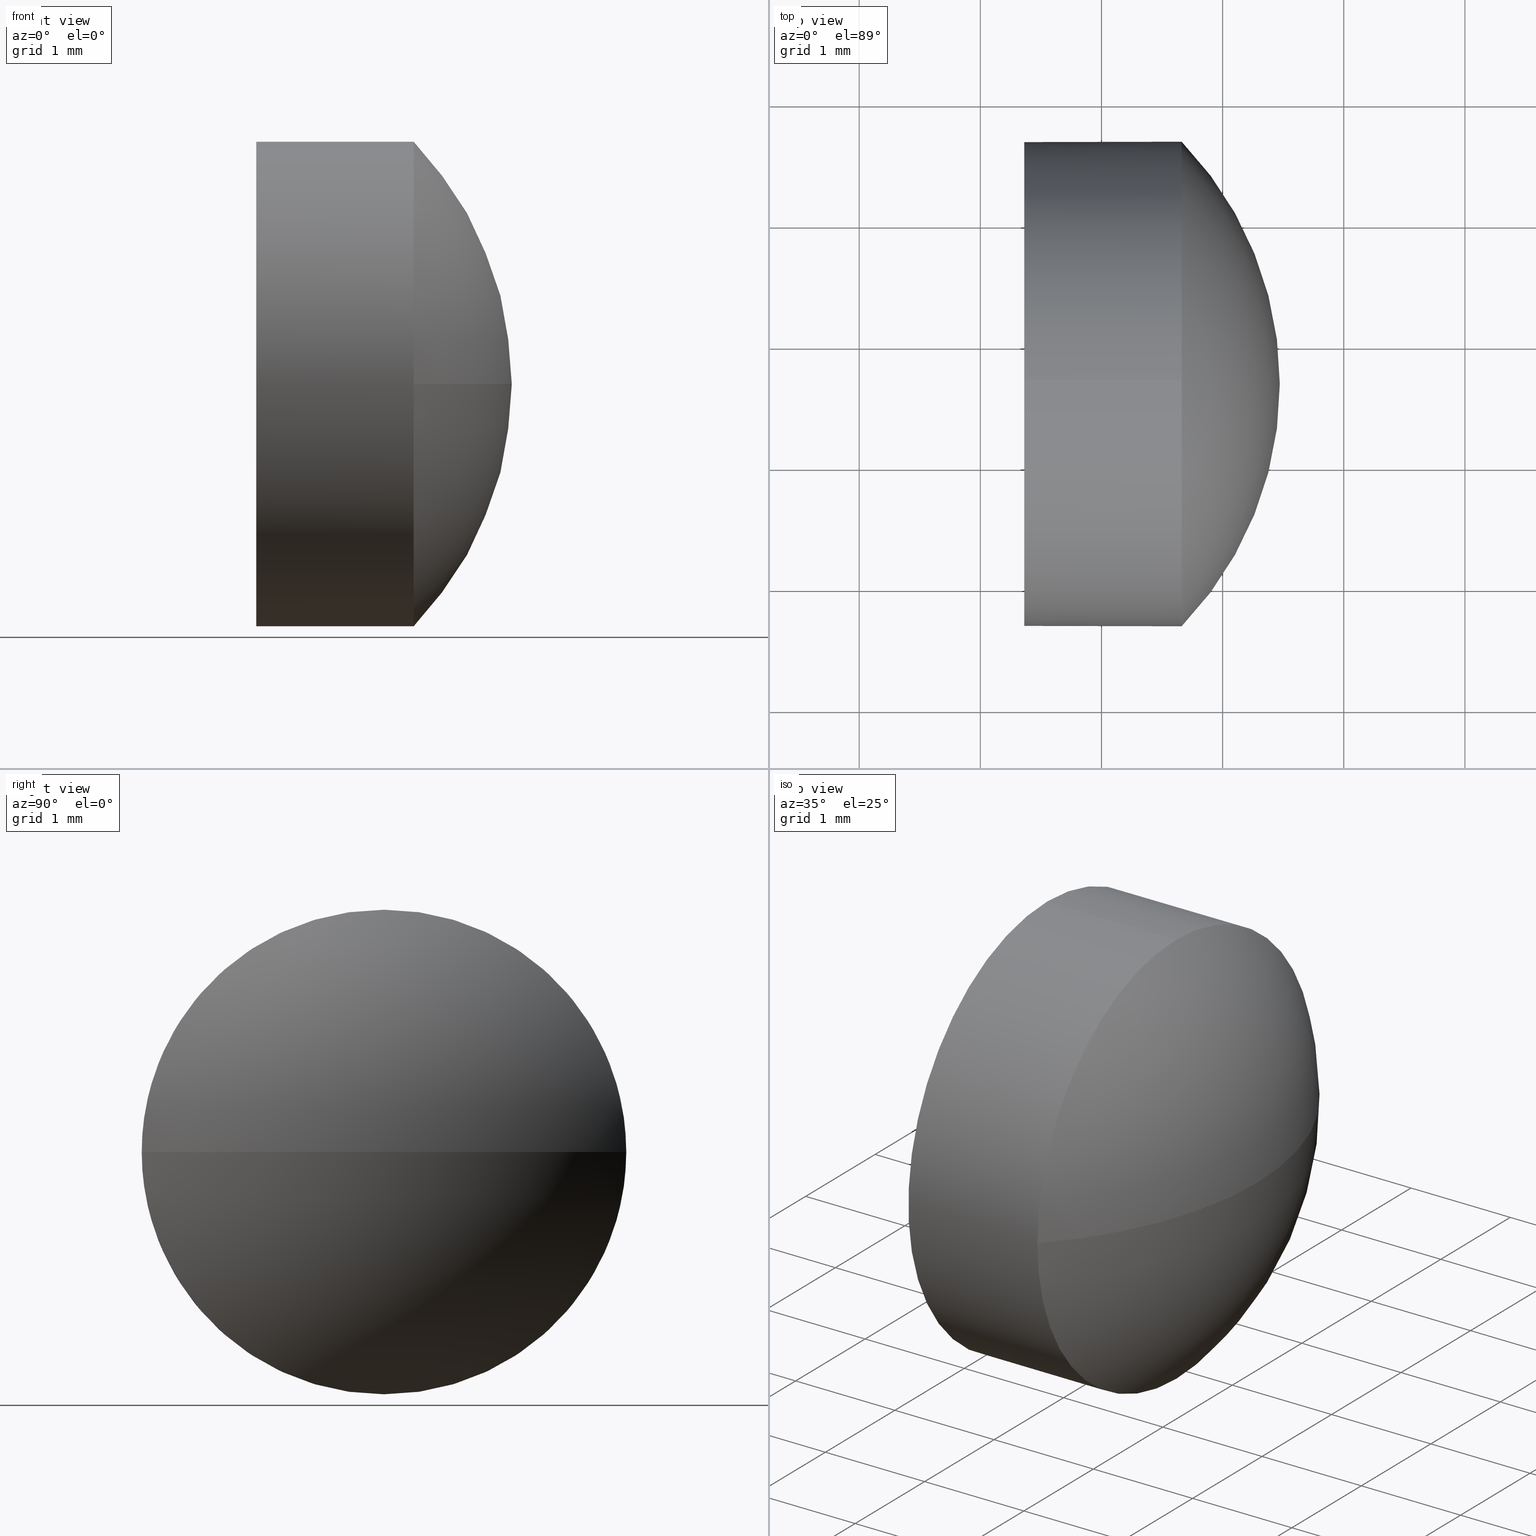
[diagram: canonical four-view strip — front | top / right | iso, engineering-drawing reading convention]
A machine part, canonical four-view strip (front | top / right | iso — engineering-drawing reading convention). The complete STEP part file that produces these views, byte-faithful:
ISO-10303-21;
HEADER;
FILE_DESCRIPTION (( 'STEP AP214' ),
    '1' );
FILE_NAME ('100345.STEP',
    '2019-06-03T02:19:22',
    ( '' ),
    ( '' ),
    'SwSTEP 2.0',
    'SolidWorks 2016',
    '' );
FILE_SCHEMA (( 'AUTOMOTIVE_DESIGN' ));
ENDSEC;

DATA;
#1 = STYLED_ITEM ( 'NONE', ( #39 ), #55 ) ;
#2 = CARTESIAN_POINT ( 'NONE',  ( 370.6620261446945500, 55.67682587969912300, 0.0000000000000000000 ) ) ;
#3 = EDGE_CURVE ( 'NONE', #177, #56, #150, .T. ) ;
#4 = FILL_AREA_STYLE_COLOUR ( '', #140 ) ;
#5 = PRODUCT ( '100345', '100345', '', ( #111 ) ) ;
#6 = ORIENTED_EDGE ( 'NONE', *, *, #129, .T. ) ;
#7 = DIRECTION ( 'NONE',  ( 1.000000000000000000, 0.0000000000000000000, 0.0000000000000000000 ) ) ;
#8 = CIRCLE ( 'NONE', #165, 2.874135802469146600 ) ;
#9 = AXIS2_PLACEMENT_3D ( 'NONE', #120, #88, #47 ) ;
#10 = ORIENTED_EDGE ( 'NONE', *, *, #129, .F. ) ;
#11 = ADVANCED_FACE ( 'NONE', ( #83 ), #139, .T. ) ;
#12 = ADVANCED_FACE ( 'NONE', ( #184 ), #78, .T. ) ;
#13 = EDGE_LOOP ( 'NONE', ( #172, #171 ) ) ;
#14 = AXIS2_PLACEMENT_3D ( 'NONE', #2, #45, #178 ) ;
#15 = DIRECTION ( 'NONE',  ( -1.000000000000000000, -0.0000000000000000000, -0.0000000000000000000 ) ) ;
#16 = CARTESIAN_POINT ( 'NONE',  ( 368.9339194506478600, 55.67682587969912300, 0.0000000000000000000 ) ) ;
#17 = CARTESIAN_POINT ( 'NONE',  ( 370.6620261446945500, 55.67682587969912300, 2.000000000000001800 ) ) ;
#18 = CARTESIAN_POINT ( 'NONE',  ( 370.6620261446945500, 57.67682587969912300, 2.449293598294690600E-016 ) ) ;
#19 =( LENGTH_UNIT ( ) NAMED_UNIT ( * ) SI_UNIT ( .MILLI., .METRE. ) );
#20 = FILL_AREA_STYLE ('',( #162 ) ) ;
#21 = ORIENTED_EDGE ( 'NONE', *, *, #137, .F. ) ;
#22 = UNCERTAINTY_MEASURE_WITH_UNIT (LENGTH_MEASURE( 1.000000000000000100E-005 ), #19, 'distance_accuracy_value', 'NONE');
#23 = PRESENTATION_LAYER_ASSIGNMENT (  '', '', ( #1 ) ) ;
#24 = ORIENTED_EDGE ( 'NONE', *, *, #166, .T. ) ;
#25 = ORIENTED_EDGE ( 'NONE', *, *, #110, .F. ) ;
#26 = LINE ( 'NONE', #105, #155 ) ;
#27 =( LENGTH_UNIT ( ) NAMED_UNIT ( * ) SI_UNIT ( .MILLI., .METRE. ) );
#28 = SPHERICAL_SURFACE ( 'NONE', #157, 2.874135802469149200 ) ;
#29 = CARTESIAN_POINT ( 'NONE',  ( 368.9339194506478600, 55.67682587969912300, -2.000000000000001800 ) ) ;
#30 = CARTESIAN_POINT ( 'NONE',  ( 369.3620261446946000, 55.67682587969912300, 0.0000000000000000000 ) ) ;
#31 = COLOUR_RGB ( '',1.000000000000000000, 1.000000000000000000, 1.000000000000000000 ) ;
#32 = CARTESIAN_POINT ( 'NONE',  ( 368.9339194506478600, 55.67682587969912300, 0.0000000000000000000 ) ) ;
#33 = SURFACE_STYLE_USAGE ( .BOTH. , #168 ) ;
#34 =( GEOMETRIC_REPRESENTATION_CONTEXT ( 3 ) GLOBAL_UNCERTAINTY_ASSIGNED_CONTEXT ( ( #41 ) ) GLOBAL_UNIT_ASSIGNED_CONTEXT ( ( #62, #163, #176 ) ) REPRESENTATION_CONTEXT ( 'NONE', 'WORKASPACE' ) );
#35 = DIRECTION ( 'NONE',  ( 0.0000000000000000000, 0.0000000000000000000, 1.000000000000000000 ) ) ;
#36 = MANIFOLD_SOLID_BREP ( '��ת1', #66 ) ;
#37 = FACE_OUTER_BOUND ( 'NONE', #160, .T. ) ;
#38 =( GEOMETRIC_REPRESENTATION_CONTEXT ( 3 ) GLOBAL_UNCERTAINTY_ASSIGNED_CONTEXT ( ( #180 ) ) GLOBAL_UNIT_ASSIGNED_CONTEXT ( ( #27, #161, #70 ) ) REPRESENTATION_CONTEXT ( 'NONE', 'WORKASPACE' ) );
#39 = PRESENTATION_STYLE_ASSIGNMENT (( #117 ) ) ;
#40 = VERTEX_POINT ( 'NONE', #102 ) ;
#41 = UNCERTAINTY_MEASURE_WITH_UNIT (LENGTH_MEASURE( 1.000000000000000100E-005 ), #62, 'distance_accuracy_value', 'NONE');
#42 = STYLED_ITEM ( 'NONE', ( #107 ), #36 ) ;
#43 = SURFACE_STYLE_FILL_AREA ( #175 ) ;
#44 = VERTEX_POINT ( 'NONE', #18 ) ;
#45 = DIRECTION ( 'NONE',  ( -1.000000000000000000, -0.0000000000000000000, -0.0000000000000000000 ) ) ;
#46 = DIRECTION ( 'NONE',  ( 0.0000000000000000000, 0.0000000000000000000, 1.000000000000000000 ) ) ;
#47 = DIRECTION ( 'NONE',  ( 0.0000000000000000000, 0.0000000000000000000, 1.000000000000000000 ) ) ;
#48 = PRODUCT_DEFINITION_SHAPE ( 'NONE', 'NONE',  #181 ) ;
#49 = APPLICATION_CONTEXT ( 'automotive_design' ) ;
#50 = CARTESIAN_POINT ( 'NONE',  ( 368.5978903422254100, 55.67682587969913800, 0.0000000000000000000 ) ) ;
#51 = ORIENTED_EDGE ( 'NONE', *, *, #65, .F. ) ;
#52 = VERTEX_POINT ( 'NONE', #164 ) ;
#53 =( GEOMETRIC_REPRESENTATION_CONTEXT ( 3 ) GLOBAL_UNCERTAINTY_ASSIGNED_CONTEXT ( ( #22 ) ) GLOBAL_UNIT_ASSIGNED_CONTEXT ( ( #19, #77, #108 ) ) REPRESENTATION_CONTEXT ( 'NONE', 'WORKASPACE' ) );
#54 = ADVANCED_FACE ( 'NONE', ( #37 ), #28, .T. ) ;
#55 = ADVANCED_BREP_SHAPE_REPRESENTATION ( '100345', ( #36, #68 ), #34 ) ;
#56 = VERTEX_POINT ( 'NONE', #63 ) ;
#57 = EDGE_LOOP ( 'NONE', ( #142, #67, #6, #159, #93 ) ) ;
#58 = SURFACE_SIDE_STYLE ('',( #43 ) ) ;
#59 = DIRECTION ( 'NONE',  ( -1.000000000000000000, -0.0000000000000000000, -0.0000000000000000000 ) ) ;
#60 = MECHANICAL_DESIGN_GEOMETRIC_PRESENTATION_REPRESENTATION (  '', ( #1 ), #38 ) ;
#61 = CARTESIAN_POINT ( 'NONE',  ( 369.3620261446946000, 55.67682587969912300, 0.0000000000000000000 ) ) ;
#62 =( LENGTH_UNIT ( ) NAMED_UNIT ( * ) SI_UNIT ( .MILLI., .METRE. ) );
#63 = CARTESIAN_POINT ( 'NONE',  ( 370.6620261446945500, 53.67682587969914500, 0.0000000000000000000 ) ) ;
#64 = AXIS2_PLACEMENT_3D ( 'NONE', #151, #106, #72 ) ;
#65 = EDGE_CURVE ( 'NONE', #40, #127, #69, .T. ) ;
#66 = CLOSED_SHELL ( 'NONE', ( #12, #11, #54, #113, #182 ) ) ;
#67 = ORIENTED_EDGE ( 'NONE', *, *, #137, .T. ) ;
#68 = AXIS2_PLACEMENT_3D ( 'NONE', #103, #94, #7 ) ;
#69 = CIRCLE ( 'NONE', #145, 2.000000000000001800 ) ;
#70 =( NAMED_UNIT ( * ) SI_UNIT ( $, .STERADIAN. ) SOLID_ANGLE_UNIT ( ) );
#71 = APPLICATION_PROTOCOL_DEFINITION ( 'draft international standard', 'automotive_design', 1998, #49 ) ;
#72 = DIRECTION ( 'NONE',  ( 0.0000000000000000000, 0.0000000000000000000, 1.000000000000000000 ) ) ;
#73 = ORIENTED_EDGE ( 'NONE', *, *, #92, .T. ) ;
#74 = DIRECTION ( 'NONE',  ( -1.000000000000000000, -0.0000000000000000000, -0.0000000000000000000 ) ) ;
#75 = DIRECTION ( 'NONE',  ( 0.0000000000000000000, 0.0000000000000000000, 1.000000000000000000 ) ) ;
#76 = CIRCLE ( 'NONE', #14, 2.000000000000001800 ) ;
#77 =( NAMED_UNIT ( * ) PLANE_ANGLE_UNIT ( ) SI_UNIT ( $, .RADIAN. ) );
#78 = CYLINDRICAL_SURFACE ( 'NONE', #169, 2.000000000000001800 ) ;
#79 = ORIENTED_EDGE ( 'NONE', *, *, #3, .T. ) ;
#80 = PRESENTATION_LAYER_ASSIGNMENT (  '', '', ( #42 ) ) ;
#81 = EDGE_LOOP ( 'NONE', ( #116, #156, #125, #10 ) ) ;
#82 = EDGE_CURVE ( 'NONE', #127, #40, #144, .T. ) ;
#83 = FACE_OUTER_BOUND ( 'NONE', #81, .T. ) ;
#84 = ORIENTED_EDGE ( 'NONE', *, *, #114, .T. ) ;
#85 = DIRECTION ( 'NONE',  ( 0.0000000000000000000, 0.0000000000000000000, -1.000000000000000000 ) ) ;
#86 = CARTESIAN_POINT ( 'NONE',  ( 370.6620261446945500, 55.67682587969912300, 0.0000000000000000000 ) ) ;
#87 = DIRECTION ( 'NONE',  ( 0.0000000000000000000, 0.0000000000000000000, 1.000000000000000000 ) ) ;
#88 = DIRECTION ( 'NONE',  ( -1.000000000000000000, -0.0000000000000000000, -0.0000000000000000000 ) ) ;
#89 = DIRECTION ( 'NONE',  ( -1.000000000000000000, -0.0000000000000000000, -0.0000000000000000000 ) ) ;
#90 = AXIS2_PLACEMENT_3D ( 'NONE', #32, #132, #134 ) ;
#91 = CYLINDRICAL_SURFACE ( 'NONE', #90, 2.000000000000001800 ) ;
#92 = EDGE_CURVE ( 'NONE', #44, #52, #119, .T. ) ;
#93 = ORIENTED_EDGE ( 'NONE', *, *, #82, .F. ) ;
#94 = DIRECTION ( 'NONE',  ( 0.0000000000000000000, 0.0000000000000000000, 1.000000000000000000 ) ) ;
#95 = ORIENTED_EDGE ( 'NONE', *, *, #92, .F. ) ;
#96 = FACE_OUTER_BOUND ( 'NONE', #13, .T. ) ;
#97 = EDGE_CURVE ( 'NONE', #135, #40, #26, .T. ) ;
#98 = AXIS2_PLACEMENT_3D ( 'NONE', #61, #148, #123 ) ;
#99 = CARTESIAN_POINT ( 'NONE',  ( 368.5978903422254100, 55.67682587969913800, 0.0000000000000000000 ) ) ;
#100 = DIRECTION ( 'NONE',  ( -1.000000000000000000, 0.0000000000000000000, 0.0000000000000000000 ) ) ;
#101 = DIRECTION ( 'NONE',  ( -1.000000000000000000, -0.0000000000000000000, -0.0000000000000000000 ) ) ;
#102 = CARTESIAN_POINT ( 'NONE',  ( 369.3620261446946000, 55.67682587969912300, 2.000000000000001800 ) ) ;
#103 = CARTESIAN_POINT ( 'NONE',  ( 0.0000000000000000000, 0.0000000000000000000, 0.0000000000000000000 ) ) ;
#104 = DIRECTION ( 'NONE',  ( 0.0000000000000000000, -1.000000000000000000, -1.224646799147354400E-016 ) ) ;
#105 = CARTESIAN_POINT ( 'NONE',  ( 368.9339194506478600, 55.67682587969912300, 2.000000000000001800 ) ) ;
#106 = DIRECTION ( 'NONE',  ( -1.000000000000000000, -0.0000000000000000000, -0.0000000000000000000 ) ) ;
#107 = PRESENTATION_STYLE_ASSIGNMENT (( #33 ) ) ;
#108 =( NAMED_UNIT ( * ) SI_UNIT ( $, .STERADIAN. ) SOLID_ANGLE_UNIT ( ) );
#109 = CIRCLE ( 'NONE', #9, 2.000000000000001800 ) ;
#110 = EDGE_CURVE ( 'NONE', #177, #44, #8, .T. ) ;
#111 = PRODUCT_CONTEXT ( 'NONE', #49, 'mechanical' ) ;
#112 = EDGE_LOOP ( 'NONE', ( #73, #24, #51, #122, #84 ) ) ;
#113 = ADVANCED_FACE ( 'NONE', ( #158 ), #91, .T. ) ;
#114 = EDGE_CURVE ( 'NONE', #135, #44, #185, .T. ) ;
#115 = LINE ( 'NONE', #29, #173 ) ;
#116 = ORIENTED_EDGE ( 'NONE', *, *, #3, .F. ) ;
#117 = SURFACE_STYLE_USAGE ( .BOTH. , #58 ) ;
#118 = CARTESIAN_POINT ( 'NONE',  ( 368.5978903422254100, 55.67682587969913800, 0.0000000000000000000 ) ) ;
#119 = CIRCLE ( 'NONE', #154, 2.000000000000001800 ) ;
#120 = CARTESIAN_POINT ( 'NONE',  ( 370.6620261446945500, 55.67682587969912300, 0.0000000000000000000 ) ) ;
#121 = DIRECTION ( 'NONE',  ( 0.0000000000000000000, -1.224646799147353200E-016, 1.000000000000000000 ) ) ;
#122 = ORIENTED_EDGE ( 'NONE', *, *, #97, .F. ) ;
#123 = DIRECTION ( 'NONE',  ( 0.0000000000000000000, 0.0000000000000000000, -1.000000000000000000 ) ) ;
#124 = CARTESIAN_POINT ( 'NONE',  ( 370.6620261446945500, 55.67682587969912300, 0.0000000000000000000 ) ) ;
#125 = ORIENTED_EDGE ( 'NONE', *, *, #114, .F. ) ;
#126 = AXIS2_PLACEMENT_3D ( 'NONE', #99, #85, #100 ) ;
#127 = VERTEX_POINT ( 'NONE', #146 ) ;
#128 = PRODUCT_DEFINITION_FORMATION_WITH_SPECIFIED_SOURCE ( '�κ�', '', #5, .NOT_KNOWN. ) ;
#129 = EDGE_CURVE ( 'NONE', #56, #135, #76, .T. ) ;
#130 = DIRECTION ( 'NONE',  ( 0.0000000000000000000, -1.000000000000000000, 0.0000000000000000000 ) ) ;
#131 = CARTESIAN_POINT ( 'NONE',  ( 371.4720261446945500, 55.67682587969913800, 0.0000000000000000000 ) ) ;
#132 = DIRECTION ( 'NONE',  ( -1.000000000000000000, -0.0000000000000000000, -0.0000000000000000000 ) ) ;
#133 = CARTESIAN_POINT ( 'NONE',  ( 368.5978903422254100, 55.67682587969913800, 0.0000000000000000000 ) ) ;
#134 = DIRECTION ( 'NONE',  ( 0.0000000000000000000, 0.0000000000000000000, 1.000000000000000000 ) ) ;
#135 = VERTEX_POINT ( 'NONE', #17 ) ;
#136 = PRODUCT_RELATED_PRODUCT_CATEGORY ( 'part', '', ( #5 ) ) ;
#137 = EDGE_CURVE ( 'NONE', #52, #56, #109, .T. ) ;
#138 = APPLICATION_CONTEXT ( 'automotive_design' ) ;
#139 = SPHERICAL_SURFACE ( 'NONE', #141, 2.874135802469149200 ) ;
#140 = COLOUR_RGB ( '',1.000000000000000000, 1.000000000000000000, 1.000000000000000000 ) ;
#141 = AXIS2_PLACEMENT_3D ( 'NONE', #118, #147, #130 ) ;
#142 = ORIENTED_EDGE ( 'NONE', *, *, #166, .F. ) ;
#143 = PRODUCT_DEFINITION_CONTEXT ( 'detailed design', #138, 'design' ) ;
#144 = CIRCLE ( 'NONE', #64, 2.000000000000001800 ) ;
#145 = AXIS2_PLACEMENT_3D ( 'NONE', #30, #89, #174 ) ;
#146 = CARTESIAN_POINT ( 'NONE',  ( 369.3620261446946000, 55.67682587969912300, -2.000000000000001800 ) ) ;
#147 = DIRECTION ( 'NONE',  ( 0.0000000000000000000, 0.0000000000000000000, 1.000000000000000000 ) ) ;
#148 = DIRECTION ( 'NONE',  ( 1.000000000000000000, 0.0000000000000000000, 0.0000000000000000000 ) ) ;
#149 = PLANE ( 'NONE',  #98 ) ;
#150 = CIRCLE ( 'NONE', #126, 2.874135802469146600 ) ;
#151 = CARTESIAN_POINT ( 'NONE',  ( 369.3620261446946000, 55.67682587969912300, 0.0000000000000000000 ) ) ;
#152 = DIRECTION ( 'NONE',  ( 0.0000000000000000000, -1.000000000000000000, 0.0000000000000000000 ) ) ;
#153 = MECHANICAL_DESIGN_GEOMETRIC_PRESENTATION_REPRESENTATION (  '', ( #42 ), #53 ) ;
#154 = AXIS2_PLACEMENT_3D ( 'NONE', #124, #167, #46 ) ;
#155 = VECTOR ( 'NONE', #74, 1000.000000000000000 ) ;
#156 = ORIENTED_EDGE ( 'NONE', *, *, #110, .T. ) ;
#157 = AXIS2_PLACEMENT_3D ( 'NONE', #50, #35, #152 ) ;
#158 = FACE_OUTER_BOUND ( 'NONE', #57, .T. ) ;
#159 = ORIENTED_EDGE ( 'NONE', *, *, #97, .T. ) ;
#160 = EDGE_LOOP ( 'NONE', ( #25, #79, #21, #95 ) ) ;
#161 =( NAMED_UNIT ( * ) PLANE_ANGLE_UNIT ( ) SI_UNIT ( $, .RADIAN. ) );
#162 = FILL_AREA_STYLE_COLOUR ( '', #31 ) ;
#163 =( NAMED_UNIT ( * ) PLANE_ANGLE_UNIT ( ) SI_UNIT ( $, .RADIAN. ) );
#164 = CARTESIAN_POINT ( 'NONE',  ( 370.6620261446945500, 55.67682587969912300, -2.000000000000001800 ) ) ;
#165 = AXIS2_PLACEMENT_3D ( 'NONE', #133, #121, #104 ) ;
#166 = EDGE_CURVE ( 'NONE', #52, #127, #115, .T. ) ;
#167 = DIRECTION ( 'NONE',  ( -1.000000000000000000, -0.0000000000000000000, -0.0000000000000000000 ) ) ;
#168 = SURFACE_SIDE_STYLE ('',( #179 ) ) ;
#169 = AXIS2_PLACEMENT_3D ( 'NONE', #16, #59, #87 ) ;
#170 = APPLICATION_PROTOCOL_DEFINITION ( 'draft international standard', 'automotive_design', 1998, #138 ) ;
#171 = ORIENTED_EDGE ( 'NONE', *, *, #82, .T. ) ;
#172 = ORIENTED_EDGE ( 'NONE', *, *, #65, .T. ) ;
#173 = VECTOR ( 'NONE', #15, 1000.000000000000000 ) ;
#174 = DIRECTION ( 'NONE',  ( 0.0000000000000000000, 0.0000000000000000000, 1.000000000000000000 ) ) ;
#175 = FILL_AREA_STYLE ('',( #4 ) ) ;
#176 =( NAMED_UNIT ( * ) SI_UNIT ( $, .STERADIAN. ) SOLID_ANGLE_UNIT ( ) );
#177 = VERTEX_POINT ( 'NONE', #131 ) ;
#178 = DIRECTION ( 'NONE',  ( 0.0000000000000000000, 0.0000000000000000000, 1.000000000000000000 ) ) ;
#179 = SURFACE_STYLE_FILL_AREA ( #20 ) ;
#180 = UNCERTAINTY_MEASURE_WITH_UNIT (LENGTH_MEASURE( 1.000000000000000100E-005 ), #27, 'distance_accuracy_value', 'NONE');
#181 = PRODUCT_DEFINITION ( 'δ֪', '', #128, #143 ) ;
#182 = ADVANCED_FACE ( 'NONE', ( #96 ), #149, .F. ) ;
#183 = AXIS2_PLACEMENT_3D ( 'NONE', #86, #101, #75 ) ;
#184 = FACE_OUTER_BOUND ( 'NONE', #112, .T. ) ;
#185 = CIRCLE ( 'NONE', #183, 2.000000000000001800 ) ;
#186 = SHAPE_DEFINITION_REPRESENTATION ( #48, #55 ) ;
ENDSEC;
END-ISO-10303-21;
